MODEL slx_c56d9ed4e54b
KIND model
CONFIG AbsTol = auto
CONFIG EnableMultiTasking = off
CONFIG FixedStep = 0.01
CONFIG MaxStep = auto
CONFIG MinStep = auto
CONFIG RelTol = 1e-3
CONFIG SampleTimeConstraint = Unconstrained
CONFIG SolverName = ode3
CONFIG StartTime = 0.0
CONFIG StopTime = 50
BLOCK [SubSystem] Cart and Pole system
  Ports = []
  RequestExecContextInheritance = off
BLOCK [SubSystem] Cart and Pole system/Cart and Pole system
  Ports = [2, 3]
  RequestExecContextInheritance = off
BLOCK [Integrator] Cart and Pole system/Cart and Pole system/Integrator
  InitialCondition = x2_init
  Ports = [1, 1]
BLOCK [Integrator] Cart and Pole system/Cart and Pole system/Integrator1
  InitialCondition = x1_init
  Ports = [1, 1]
BLOCK [Integrator] Cart and Pole system/Cart and Pole system/Integrator2
  InitialCondition = x4_init
  Ports = [1, 1]
BLOCK [Integrator] Cart and Pole system/Cart and Pole system/Integrator3
  InitialCondition = x3_init
  Ports = [1, 1]
BLOCK [SubSystem] Cart and Pole system/Cart and Pole system/MATLAB Function
  ErrorFcn = Stateflow.Translate.translate
  PermitHierarchicalResolution = ExplicitOnly
  Ports = [6, 2]
  RequestExecContextInheritance = off
  SFBlockType = MATLAB Function
  TreatAsAtomicUnit = on
BLOCK [Demux] Cart and Pole system/Cart and Pole system/MATLAB Function/ Demux 
  Outputs = 1
  Ports = [1, 1]
BLOCK [S-Function] Cart and Pole system/Cart and Pole system/MATLAB Function/ SFunction 
  EnableBusSupport = on
  FunctionName = sf_sfun
  PortCounts = [6 3]
  Ports = [6, 3]
  SFcnIsStateOwnerBlock = off
  SFunctionDeploymentMode = off
  Tag = Stateflow S-Function 2
BLOCK [Terminator] Cart and Pole system/Cart and Pole system/MATLAB Function/ Terminator 
BLOCK [Inport] Cart and Pole system/Cart and Pole system/MATLAB Function/para
  Port = 6
BLOCK [Outport] Cart and Pole system/Cart and Pole system/MATLAB Function/theta_2dot
  Port = 2
BLOCK [Inport] Cart and Pole system/Cart and Pole system/MATLAB Function/u
BLOCK [Inport] Cart and Pole system/Cart and Pole system/MATLAB Function/x1
  Port = 2
BLOCK [Inport] Cart and Pole system/Cart and Pole system/MATLAB Function/x2
  Port = 3
BLOCK [Inport] Cart and Pole system/Cart and Pole system/MATLAB Function/x3
  Port = 4
BLOCK [Inport] Cart and Pole system/Cart and Pole system/MATLAB Function/x4
  Port = 5
BLOCK [Outport] Cart and Pole system/Cart and Pole system/MATLAB Function/y_2dot
BLOCK [Mux] Cart and Pole system/Cart and Pole system/Mux
  DisplayOption = bar
  Ports = [4, 1]
BLOCK [Outport] Cart and Pole system/Cart and Pole system/X
BLOCK [Inport] Cart and Pole system/Cart and Pole system/para
  Port = 2
BLOCK [Outport] Cart and Pole system/Cart and Pole system/theta
  Port = 3
BLOCK [Inport] Cart and Pole system/Cart and Pole system/u
BLOCK [Outport] Cart and Pole system/Cart and Pole system/y
  Port = 2
BLOCK [Constant] Cart and Pole system/Constant
BLOCK [From] Cart and Pole system/From
  GotoTag = u
  TagVisibility = global
BLOCK [Goto] Cart and Pole system/Goto
  GotoTag = para
  TagVisibility = global
BLOCK [Goto] Cart and Pole system/Goto1
  GotoTag = X
  TagVisibility = global
BLOCK [Goto] Cart and Pole system/Goto2
  GotoTag = y
  TagVisibility = global
BLOCK [MATLABFcn] Cart and Pole system/System defined parameters
  MATLABFcn = set_of_parameters
  Ports = [1, 1]
BLOCK [ToWorkspace] Cart and Pole system/To Workspace1
  FixptAsFi = on
  MaxDataPoints = inf
  Ports = [1]
  SampleTime = -1
  SaveFormat = Timeseries
  VariableName = theta
BLOCK [ToWorkspace] Cart and Pole system/To Workspace4
  FixptAsFi = on
  MaxDataPoints = inf
  Ports = [1]
  SampleTime = -1
  SaveFormat = Timeseries
  VariableName = cartPosition
BLOCK [SubSystem] Find nuy - Linear Regression
  Ports = []
  RequestExecContextInheritance = off
BLOCK [Constant] Find nuy - Linear Regression/Constant10
  Value = x_6
BLOCK [Constant] Find nuy - Linear Regression/Constant11
  Value = x_7
BLOCK [Constant] Find nuy - Linear Regression/Constant12
  Value = x_8
BLOCK [Constant] Find nuy - Linear Regression/Constant13
  Value = x_9
BLOCK [Constant] Find nuy - Linear Regression/Constant14
  Value = x_10
BLOCK [Constant] Find nuy - Linear Regression/Constant5
  Value = x_1
BLOCK [Constant] Find nuy - Linear Regression/Constant6
  Value = x_2
BLOCK [Constant] Find nuy - Linear Regression/Constant7
  Value = x_3
BLOCK [Constant] Find nuy - Linear Regression/Constant8
  Value = x_4
BLOCK [Constant] Find nuy - Linear Regression/Constant9
  Value = x_5
BLOCK [Demux] Find nuy - Linear Regression/Demux2
  Outputs = 2
  Ports = [1, 2]
BLOCK [From] Find nuy - Linear Regression/From
  GotoTag = s3_abs
  TagVisibility = global
BLOCK [Goto] Find nuy - Linear Regression/Goto
  GotoTag = nuy
  TagVisibility = global
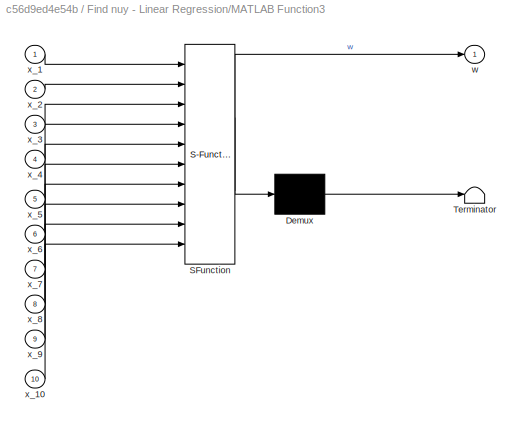
BLOCK [SubSystem] Find nuy - Linear Regression/MATLAB Function3
  ErrorFcn = Stateflow.Translate.translate
  PermitHierarchicalResolution = ExplicitOnly
  Ports = [10, 1]
  RequestExecContextInheritance = off
  SFBlockType = MATLAB Function
  TreatAsAtomicUnit = on
BLOCK [Demux] Find nuy - Linear Regression/MATLAB Function3/ Demux 
  Outputs = 1
  Ports = [1, 1]
BLOCK [S-Function] Find nuy - Linear Regression/MATLAB Function3/ SFunction 
  EnableBusSupport = on
  FunctionName = sf_sfun
  PortCounts = [10 2]
  Ports = [10, 2]
  SFcnIsStateOwnerBlock = off
  SFunctionDeploymentMode = off
  Tag = Stateflow S-Function 5
BLOCK [Terminator] Find nuy - Linear Regression/MATLAB Function3/ Terminator 
BLOCK [Outport] Find nuy - Linear Regression/MATLAB Function3/w
BLOCK [Inport] Find nuy - Linear Regression/MATLAB Function3/x_1
BLOCK [Inport] Find nuy - Linear Regression/MATLAB Function3/x_10
  Port = 10
BLOCK [Inport] Find nuy - Linear Regression/MATLAB Function3/x_2
  Port = 2
BLOCK [Inport] Find nuy - Linear Regression/MATLAB Function3/x_3
  Port = 3
BLOCK [Inport] Find nuy - Linear Regression/MATLAB Function3/x_4
  Port = 4
BLOCK [Inport] Find nuy - Linear Regression/MATLAB Function3/x_5
  Port = 5
BLOCK [Inport] Find nuy - Linear Regression/MATLAB Function3/x_6
  Port = 6
BLOCK [Inport] Find nuy - Linear Regression/MATLAB Function3/x_7
  Port = 7
BLOCK [Inport] Find nuy - Linear Regression/MATLAB Function3/x_8
  Port = 8
BLOCK [Inport] Find nuy - Linear Regression/MATLAB Function3/x_9
  Port = 9
BLOCK [SubSystem] Find nuy - Linear Regression/MATLAB Function4
  ErrorFcn = Stateflow.Translate.translate
  PermitHierarchicalResolution = ExplicitOnly
  Ports = [3, 1]
  RequestExecContextInheritance = off
  SFBlockType = MATLAB Function
  TreatAsAtomicUnit = on
BLOCK [Demux] Find nuy - Linear Regression/MATLAB Function4/ Demux 
  Outputs = 1
  Ports = [1, 1]
BLOCK [S-Function] Find nuy - Linear Regression/MATLAB Function4/ SFunction 
  EnableBusSupport = on
  FunctionName = sf_sfun
  PortCounts = [3 2]
  Ports = [3, 2]
  SFcnIsStateOwnerBlock = off
  SFunctionDeploymentMode = off
  Tag = Stateflow S-Function 6
BLOCK [Terminator] Find nuy - Linear Regression/MATLAB Function4/ Terminator 
BLOCK [Inport] Find nuy - Linear Regression/MATLAB Function4/S3
  Port = 3
BLOCK [Outport] Find nuy - Linear Regression/MATLAB Function4/nuy
BLOCK [Inport] Find nuy - Linear Regression/MATLAB Function4/w0
BLOCK [Inport] Find nuy - Linear Regression/MATLAB Function4/w1
  Port = 2
BLOCK [Scope] Find nuy - Linear Regression/Scope4
  Floating = off
  NumInputPorts = 1
  Ports = [1]
  ScopeSpecificationString = Simulink.scopes.TimeScopeBlockCfg('CurrentConfiguration', extmgr.ConfigurationSet(extmgr.Configuration('Core','General UI',true),extmgr.Configuration('Core','Source UI',true),extmgr.Configuration('Sources','WiredSimulink',true,'DataLoggingVariableName','ScopeData5'),extmgr.Configuration('Visuals','Time Domain',true,'SerializedDisplays',{struct('MinYLimReal','0.06492','MaxYLimReal','5.96113','YLabe...<+1444ch>
BLOCK [SubSystem] Reference Trajectory
  Ports = []
  RequestExecContextInheritance = off
BLOCK [Sum] Reference Trajectory/Add
  IconShape = rectangular
  Inputs = +-
  Ports = [2, 1]
BLOCK [From] Reference Trajectory/From
  GotoTag = X
  TagVisibility = global
BLOCK [Gain] Reference Trajectory/Gain2
BLOCK [Goto] Reference Trajectory/Goto
  GotoTag = e
  TagVisibility = global
BLOCK [Goto] Reference Trajectory/Goto3
  GotoTag = Xd
  TagVisibility = global
BLOCK [SubSystem] Reference Trajectory/Xd
  Ports = [0, 1]
  RequestExecContextInheritance = off
BLOCK [Sum] Reference Trajectory/Xd/Add
  IconShape = rectangular
  Ports = [2, 1]
BLOCK [Constant] Reference Trajectory/Xd/Constant
  Value = 0
BLOCK [Derivative] Reference Trajectory/Xd/Derivative
BLOCK [Gain] Reference Trajectory/Xd/Gain
  Gain = 0.2
BLOCK [Gain] Reference Trajectory/Xd/Gain1
  Gain = 0.5
BLOCK [ManualSwitch] Reference Trajectory/Xd/Manual Switch
  CurrentSetting = 0
BLOCK [Mux] Reference Trajectory/Xd/Mux
  DisplayOption = bar
  Ports = [4, 1]
BLOCK [DiscretePulseGenerator] Reference Trajectory/Xd/Pulse Generator
  Period = period
  Ports = [0, 1]
  PulseType = Time based
  PulseWidth = 50
BLOCK [DiscretePulseGenerator] Reference Trajectory/Xd/Pulse Generator1
  Amplitude = -1
  Period = period
  PhaseDelay = period/2
  Ports = [0, 1]
  PulseType = Time based
  PulseWidth = 50
BLOCK [Sin] Reference Trajectory/Xd/Sine Wave
  Frequency = 2*pi/period
  Ports = [0, 1]
BLOCK [ToWorkspace] Reference Trajectory/Xd/To Workspace1
  FixptAsFi = on
  MaxDataPoints = inf
  Ports = [1]
  SampleTime = -1
  SaveFormat = Timeseries
  VariableName = referenceTrajectory
BLOCK [Outport] Reference Trajectory/Xd/Xd
BLOCK [SubSystem] Sliding Mode Control
  Ports = []
  RequestExecContextInheritance = off
BLOCK [Constant] Sliding Mode Control/Constant
  Value = c1
BLOCK [Constant] Sliding Mode Control/Constant1
  Value = c2
BLOCK [Constant] Sliding Mode Control/Constant2
  Value = c3
BLOCK [Constant] Sliding Mode Control/Constant3
  Value = c4
BLOCK [Constant] Sliding Mode Control/Constant4
  Value = k
BLOCK [Demux] Sliding Mode Control/Demux
  Ports = [1, 4]
BLOCK [Demux] Sliding Mode Control/Demux1
  Ports = [1, 4]
BLOCK [From] Sliding Mode Control/From
  GotoTag = X
  TagVisibility = global
BLOCK [From] Sliding Mode Control/From1
  GotoTag = e
  TagVisibility = global
BLOCK [From] Sliding Mode Control/From2
  GotoTag = nuy
  TagVisibility = global
BLOCK [From] Sliding Mode Control/From4
  GotoTag = para
  TagVisibility = global
BLOCK [Goto] Sliding Mode Control/Goto
  GotoTag = s3_abs
  TagVisibility = global
BLOCK [Goto] Sliding Mode Control/Goto1
  GotoTag = u
  TagVisibility = global
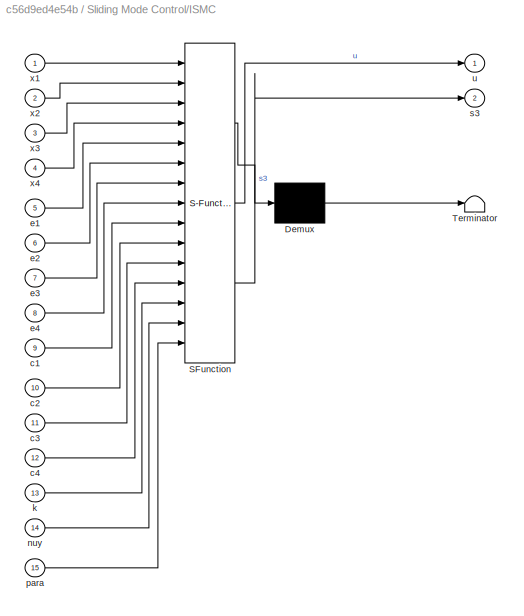
BLOCK [SubSystem] Sliding Mode Control/ISMC
  ErrorFcn = Stateflow.Translate.translate
  PermitHierarchicalResolution = ExplicitOnly
  Ports = [15, 2]
  RequestExecContextInheritance = off
  SFBlockType = MATLAB Function
  TreatAsAtomicUnit = on
BLOCK [Demux] Sliding Mode Control/ISMC/ Demux 
  Outputs = 1
  Ports = [1, 1]
BLOCK [S-Function] Sliding Mode Control/ISMC/ SFunction 
  EnableBusSupport = on
  FunctionName = sf_sfun
  PortCounts = [15 3]
  Ports = [15, 3]
  SFcnIsStateOwnerBlock = off
  SFunctionDeploymentMode = off
  Tag = Stateflow S-Function 1
BLOCK [Terminator] Sliding Mode Control/ISMC/ Terminator 
BLOCK [Inport] Sliding Mode Control/ISMC/c1
  Port = 9
BLOCK [Inport] Sliding Mode Control/ISMC/c2
  Port = 10
BLOCK [Inport] Sliding Mode Control/ISMC/c3
  Port = 11
BLOCK [Inport] Sliding Mode Control/ISMC/c4
  Port = 12
BLOCK [Inport] Sliding Mode Control/ISMC/e1
  Port = 5
BLOCK [Inport] Sliding Mode Control/ISMC/e2
  Port = 6
BLOCK [Inport] Sliding Mode Control/ISMC/e3
  Port = 7
BLOCK [Inport] Sliding Mode Control/ISMC/e4
  Port = 8
BLOCK [Inport] Sliding Mode Control/ISMC/k
  Port = 13
BLOCK [Inport] Sliding Mode Control/ISMC/nuy
  Port = 14
BLOCK [Inport] Sliding Mode Control/ISMC/para
  Port = 15
BLOCK [Outport] Sliding Mode Control/ISMC/s3
  Port = 2
BLOCK [Outport] Sliding Mode Control/ISMC/u
BLOCK [Inport] Sliding Mode Control/ISMC/x1
BLOCK [Inport] Sliding Mode Control/ISMC/x2
  Port = 2
BLOCK [Inport] Sliding Mode Control/ISMC/x3
  Port = 3
BLOCK [Inport] Sliding Mode Control/ISMC/x4
  Port = 4
BLOCK [SubSystem] Sliding Mode Control/MATLAB Function2
  ErrorFcn = Stateflow.Translate.translate
  NameLocation = top
  PermitHierarchicalResolution = ExplicitOnly
  Ports = [1, 1]
  RequestExecContextInheritance = off
  SFBlockType = MATLAB Function
  TreatAsAtomicUnit = on
BLOCK [Demux] Sliding Mode Control/MATLAB Function2/ Demux 
  Outputs = 1
  Ports = [1, 1]
BLOCK [S-Function] Sliding Mode Control/MATLAB Function2/ SFunction 
  EnableBusSupport = on
  FunctionName = sf_sfun
  PortCounts = [1 2]
  Ports = [1, 2]
  SFcnIsStateOwnerBlock = off
  SFunctionDeploymentMode = off
  Tag = Stateflow S-Function 4
BLOCK [Terminator] Sliding Mode Control/MATLAB Function2/ Terminator 
BLOCK [Inport] Sliding Mode Control/MATLAB Function2/u
BLOCK [Outport] Sliding Mode Control/MATLAB Function2/y
BLOCK [Memory] Sliding Mode Control/Memory
BLOCK [Saturate] Sliding Mode Control/Saturation
  LowerLimit = -24
  UpperLimit = 24
BLOCK [Stop] Sliding Mode Control/Stop Simulation
BLOCK [SubSystem] Sliding Mode Control/Stop condition
  ErrorFcn = Stateflow.Translate.translate
  PermitHierarchicalResolution = ExplicitOnly
  Ports = [1, 1]
  RequestExecContextInheritance = off
  SFBlockType = MATLAB Function
  TreatAsAtomicUnit = on
BLOCK [Demux] Sliding Mode Control/Stop condition/ Demux 
  Outputs = 1
  Ports = [1, 1]
BLOCK [S-Function] Sliding Mode Control/Stop condition/ SFunction 
  EnableBusSupport = on
  FunctionName = sf_sfun
  PortCounts = [1 2]
  Ports = [1, 2]
  SFcnIsStateOwnerBlock = off
  SFunctionDeploymentMode = off
  Tag = Stateflow S-Function 3
BLOCK [Terminator] Sliding Mode Control/Stop condition/ Terminator 
BLOCK [Inport] Sliding Mode Control/Stop condition/e3
BLOCK [Outport] Sliding Mode Control/Stop condition/flag
BLOCK [ToWorkspace] Sliding Mode Control/To Workspace
  FixptAsFi = on
  MaxDataPoints = inf
  Ports = [1]
  SampleTime = -1
  VariableName = e1
BLOCK [ToWorkspace] Sliding Mode Control/To Workspace2
  FixptAsFi = on
  MaxDataPoints = inf
  Ports = [1]
  SampleTime = -1
  VariableName = s3
BLOCK [ToWorkspace] Sliding Mode Control/To Workspace3
  FixptAsFi = on
  MaxDataPoints = inf
  Ports = [1]
  SampleTime = -1
  VariableName = e3
BLOCK [ToWorkspace] Sliding Mode Control/To Workspace5
  FixptAsFi = on
  MaxDataPoints = inf
  Ports = [1]
  SampleTime = -1
  VariableName = u
ANNOTATION (root): SIMULATION - Programmed by: Hong Gia Bao (<email>)
NET Cart and Pole system/Cart and Pole system/Integrator1:1 -> Cart and Pole system/Cart and Pole system/MATLAB Function:2, Cart and Pole system/Cart and Pole system/Mux:1, Cart and Pole system/Cart and Pole system/y:1
NET Cart and Pole system/Cart and Pole system/Integrator2:1 -> Cart and Pole system/Cart and Pole system/Integrator3:1, Cart and Pole system/Cart and Pole system/MATLAB Function:5, Cart and Pole system/Cart and Pole system/Mux:4
NET Cart and Pole system/Cart and Pole system/Integrator3:1 -> Cart and Pole system/Cart and Pole system/MATLAB Function:4, Cart and Pole system/Cart and Pole system/Mux:3, Cart and Pole system/Cart and Pole system/theta:1
NET Cart and Pole system/Cart and Pole system/Integrator:1 -> Cart and Pole system/Cart and Pole system/Integrator1:1, Cart and Pole system/Cart and Pole system/MATLAB Function:3, Cart and Pole system/Cart and Pole system/Mux:2
LINE Cart and Pole system/Cart and Pole system/MATLAB Function:1 -> Cart and Pole system/Cart and Pole system/Integrator:1
LINE Cart and Pole system/Cart and Pole system/MATLAB Function:2 -> Cart and Pole system/Cart and Pole system/Integrator2:1
LINE Cart and Pole system/Cart and Pole system/Mux:1 -> Cart and Pole system/Cart and Pole system/X:1
LINE Cart and Pole system/Cart and Pole system/para:1 -> Cart and Pole system/Cart and Pole system/MATLAB Function:6
LINE Cart and Pole system/Cart and Pole system/u:1 -> Cart and Pole system/Cart and Pole system/MATLAB Function:1
LINE Cart and Pole system/Cart and Pole system:1 -> Cart and Pole system/Goto1:1
NET Cart and Pole system/Cart and Pole system:2 -> Cart and Pole system/Goto2:1, Cart and Pole system/To Workspace4:1
LINE Cart and Pole system/Cart and Pole system:3 -> Cart and Pole system/To Workspace1:1
LINE Cart and Pole system/Constant:1 -> Cart and Pole system/System defined parameters:1
LINE Cart and Pole system/From:1 -> Cart and Pole system/Cart and Pole system:1
NET Cart and Pole system/System defined parameters:1 -> Cart and Pole system/Cart and Pole system:2, Cart and Pole system/Goto:1
LINE Find nuy - Linear Regression/Constant10:1 -> Find nuy - Linear Regression/MATLAB Function3:6
LINE Find nuy - Linear Regression/Constant11:1 -> Find nuy - Linear Regression/MATLAB Function3:7
LINE Find nuy - Linear Regression/Constant12:1 -> Find nuy - Linear Regression/MATLAB Function3:8
LINE Find nuy - Linear Regression/Constant13:1 -> Find nuy - Linear Regression/MATLAB Function3:9
LINE Find nuy - Linear Regression/Constant14:1 -> Find nuy - Linear Regression/MATLAB Function3:10
LINE Find nuy - Linear Regression/Constant5:1 -> Find nuy - Linear Regression/MATLAB Function3:1
LINE Find nuy - Linear Regression/Constant6:1 -> Find nuy - Linear Regression/MATLAB Function3:2
LINE Find nuy - Linear Regression/Constant7:1 -> Find nuy - Linear Regression/MATLAB Function3:3
LINE Find nuy - Linear Regression/Constant8:1 -> Find nuy - Linear Regression/MATLAB Function3:4
LINE Find nuy - Linear Regression/Constant9:1 -> Find nuy - Linear Regression/MATLAB Function3:5
LINE Find nuy - Linear Regression/Demux2:1 -> Find nuy - Linear Regression/MATLAB Function4:1
LINE Find nuy - Linear Regression/Demux2:2 -> Find nuy - Linear Regression/MATLAB Function4:2
LINE Find nuy - Linear Regression/From:1 -> Find nuy - Linear Regression/MATLAB Function4:3
LINE Find nuy - Linear Regression/MATLAB Function3:1 -> Find nuy - Linear Regression/Demux2:1
NET Find nuy - Linear Regression/MATLAB Function4:1 -> Find nuy - Linear Regression/Goto:1, Find nuy - Linear Regression/Scope4:1
LINE Reference Trajectory/Add:1 -> Reference Trajectory/Goto:1
LINE Reference Trajectory/From:1 -> Reference Trajectory/Add:1
NET Reference Trajectory/Gain2:1 -> Reference Trajectory/Add:2, Reference Trajectory/Goto3:1
LINE Reference Trajectory/Xd/Add:1 -> Reference Trajectory/Xd/Gain:1
NET Reference Trajectory/Xd/Constant:1 -> Reference Trajectory/Xd/Mux:3, Reference Trajectory/Xd/Mux:4
LINE Reference Trajectory/Xd/Derivative:1 -> Reference Trajectory/Xd/Mux:2
LINE Reference Trajectory/Xd/Gain1:1 -> Reference Trajectory/Xd/Manual Switch:2
LINE Reference Trajectory/Xd/Gain:1 -> Reference Trajectory/Xd/Manual Switch:1
NET Reference Trajectory/Xd/Manual Switch:1 -> Reference Trajectory/Xd/Derivative:1, Reference Trajectory/Xd/Mux:1, Reference Trajectory/Xd/To Workspace1:1
LINE Reference Trajectory/Xd/Mux:1 -> Reference Trajectory/Xd/Xd:1
LINE Reference Trajectory/Xd/Pulse Generator1:1 -> Reference Trajectory/Xd/Add:2
LINE Reference Trajectory/Xd/Pulse Generator:1 -> Reference Trajectory/Xd/Add:1
LINE Reference Trajectory/Xd/Sine Wave:1 -> Reference Trajectory/Xd/Gain1:1
LINE Reference Trajectory/Xd:1 -> Reference Trajectory/Gain2:1
LINE Sliding Mode Control/Constant1:1 -> Sliding Mode Control/ISMC:10
LINE Sliding Mode Control/Constant2:1 -> Sliding Mode Control/ISMC:11
LINE Sliding Mode Control/Constant3:1 -> Sliding Mode Control/ISMC:12
LINE Sliding Mode Control/Constant4:1 -> Sliding Mode Control/ISMC:13
LINE Sliding Mode Control/Constant:1 -> Sliding Mode Control/ISMC:9
NET Sliding Mode Control/Demux1:1 -> Sliding Mode Control/ISMC:5, Sliding Mode Control/To Workspace:1
LINE Sliding Mode Control/Demux1:2 -> Sliding Mode Control/ISMC:6
NET Sliding Mode Control/Demux1:3 -> Sliding Mode Control/ISMC:7, Sliding Mode Control/Stop condition:1, Sliding Mode Control/To Workspace3:1
LINE Sliding Mode Control/Demux1:4 -> Sliding Mode Control/ISMC:8
LINE Sliding Mode Control/Demux:1 -> Sliding Mode Control/ISMC:1
LINE Sliding Mode Control/Demux:2 -> Sliding Mode Control/ISMC:2
LINE Sliding Mode Control/Demux:3 -> Sliding Mode Control/ISMC:3
LINE Sliding Mode Control/Demux:4 -> Sliding Mode Control/ISMC:4
LINE Sliding Mode Control/From1:1 -> Sliding Mode Control/Demux1:1
LINE Sliding Mode Control/From2:1 -> Sliding Mode Control/ISMC:14
LINE Sliding Mode Control/From4:1 -> Sliding Mode Control/ISMC:15
LINE Sliding Mode Control/From:1 -> Sliding Mode Control/Demux:1
LINE Sliding Mode Control/ISMC:1 -> Sliding Mode Control/Saturation:1
NET Sliding Mode Control/ISMC:2 -> Sliding Mode Control/Memory:1, Sliding Mode Control/To Workspace2:1
LINE Sliding Mode Control/MATLAB Function2:1 -> Sliding Mode Control/Goto:1
LINE Sliding Mode Control/Memory:1 -> Sliding Mode Control/MATLAB Function2:1
NET Sliding Mode Control/Saturation:1 -> Sliding Mode Control/Goto1:1, Sliding Mode Control/To Workspace5:1
LINE Sliding Mode Control/Stop condition:1 -> Sliding Mode Control/Stop Simulation:1
note: NET lines group one-source signal fan-out (src -> all destinations, sorted); 1:1 wires keep LINE
CHART Sliding Mode Control/ISMC states=1 transitions=1
  STATE_LABEL 'eML_blk_kernel()'
  STATE_LABEL 'SCRIPT:\nfunction [u,s3] = fcn(x1,x2,x3,x4,e1,e2,e3,e4,c1,c2,c3,c4,k,nuy, para)\n\nmc      = para(1);\nm       = para(2);\nl       = para(3);  \na       = para(4);\ng       = para(5);\nI       = para(6);\nKb      = para(7);\nRm      = para(9);\nJm      = para(10);\nCm      = para(11);\nRadius  = para(12);\nk1      = para(13);\nk2      = para(14);\nk3      = para(15);\n\nf1      = (- sin(x3)*a^3*m^2*x4^2 + g*cos(x3)...<+693ch>'
CHART Cart and Pole system/Cart and Pole system/MATLAB Function states=1 transitions=1
  STATE_LABEL 'eML_blk_kernel()'
  STATE_LABEL 'SCRIPT:\nfunction [y_2dot, theta_2dot]= fcn(u,x1,x2,x3,x4,para)\n\nmc      = para(1);\nm       = para(2);\nl       = para(3);  \na       = para(4);\ng       = para(5);\nI       = para(6);\nKb      = para(7);\nRm      = para(9);\nJm      = para(10);\nCm      = para(11);\nRadius  = para(12);\nk1      = para(13); \nk2      = para(14); \nk3      = para(15); \n\ny_2dot      = (I*x2*k2 + I*k1*u + x2*a^2*k2*m + a^2*k1*m*u...<+388ch>'
CHART Sliding Mode Control/Stop condition states=1 transitions=1
  STATE_LABEL 'eML_blk_kernel()'
  STATE_LABEL 'SCRIPT:\nfunction flag = fcn(e3)\n    if abs(e3) > 3\n        flag = 1;\n    else\n        flag = 0;\n    end\n'
CHART Sliding Mode Control/MATLAB Function2 states=1 transitions=1
  STATE_LABEL 'eML_blk_kernel()'
  STATE_LABEL 'SCRIPT:\nfunction y = fcn(u)\n\ny = abs(u);\n'
CHART Find nuy - Linear Regression/MATLAB Function3 states=1 transitions=1
  STATE_LABEL 'eML_blk_kernel()'
  STATE_LABEL "SCRIPT:\nfunction w  = fcn(x_1,x_2,x_3,x_4,x_5,x_6,x_7,x_8,x_9,x_10)\n\nX1  = [x_1,x_2,x_3,x_4,x_5,x_6,x_7,x_8,x_9,x_10]';\nX0  = ones(size(X1),'like',X1);\ny   = [9,8,7,6,5,4,3,2,1,0];\n\nXbar    = [X0,X1];\nA       = Xbar'*Xbar;\nB       = Xbar'*y';\nw       = pinv(A)*B;\n\n\n"
CHART Find nuy - Linear Regression/MATLAB Function4 states=1 transitions=1
  STATE_LABEL 'eML_blk_kernel()'
  STATE_LABEL 'SCRIPT:\nfunction nuy = fcn(w0,w1,S3)\n   \n    if S3<18\n        nuy = w0+w1*S3;\n    else if S3 ==0\n        nuy = 0;\n        else \n            nuy =20;\n        end\n    end\n'
CHART  states=0 transitions=0
CHART  states=0 transitions=0
CHART  states=0 transitions=0
CHART  states=0 transitions=0
CHART  states=0 transitions=0
CHART  states=0 transitions=0
